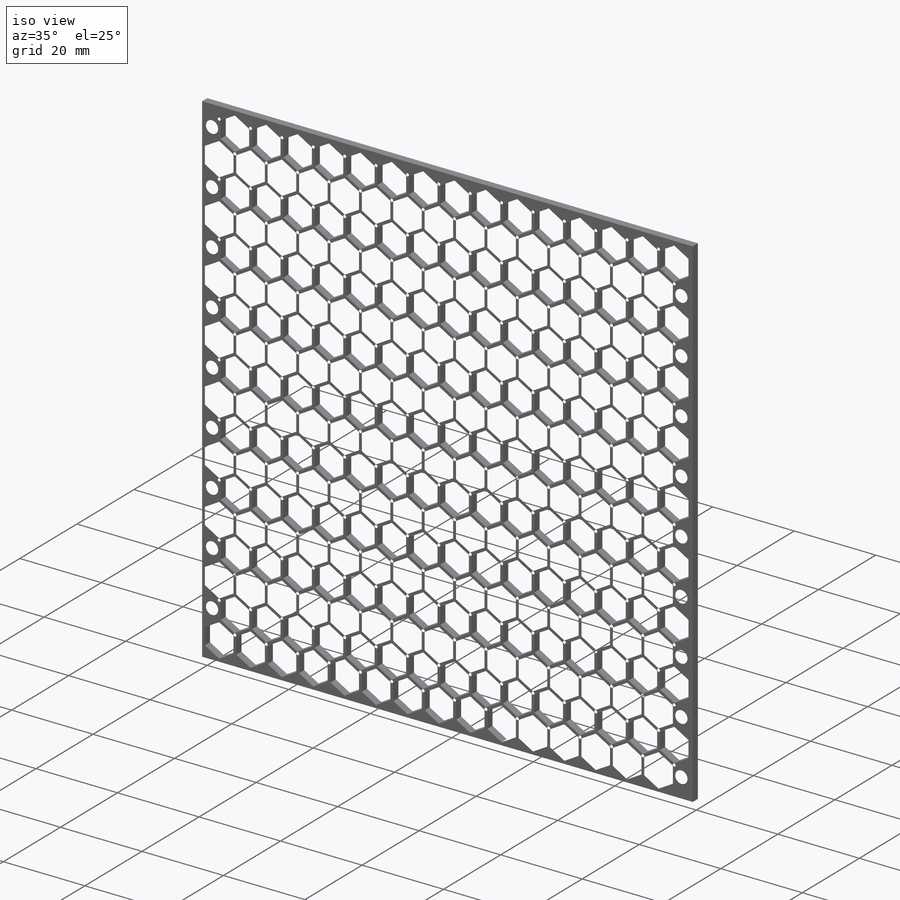
[diagram: iso view]
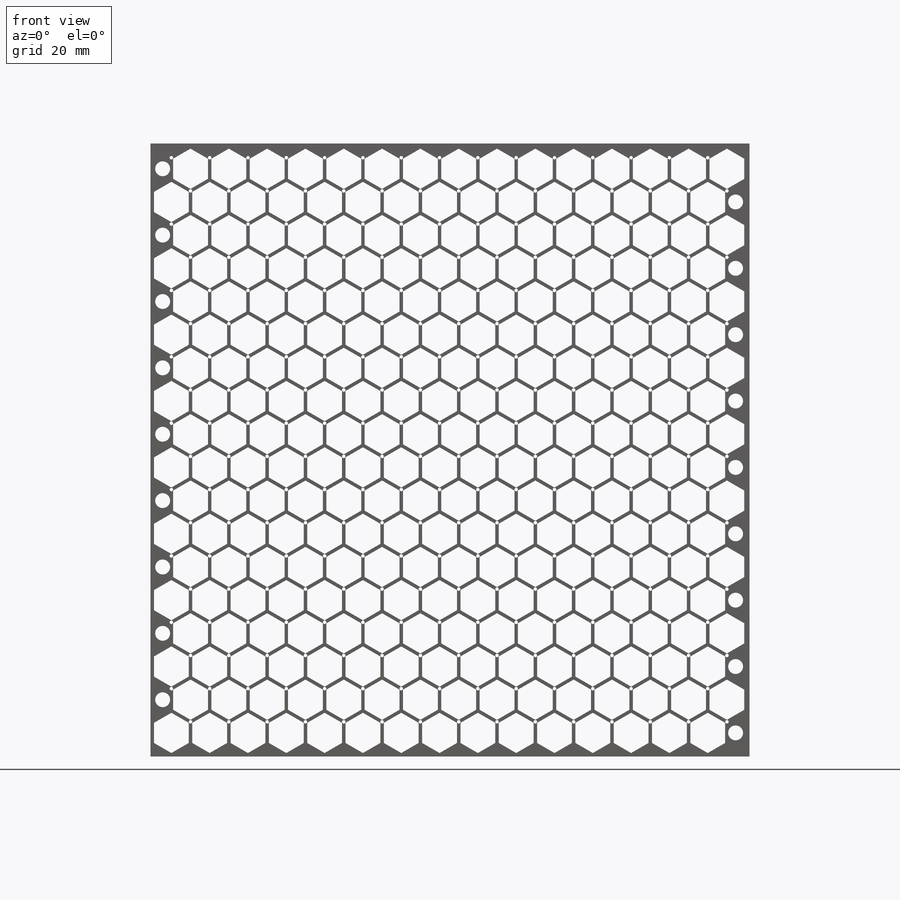
[diagram: front view]
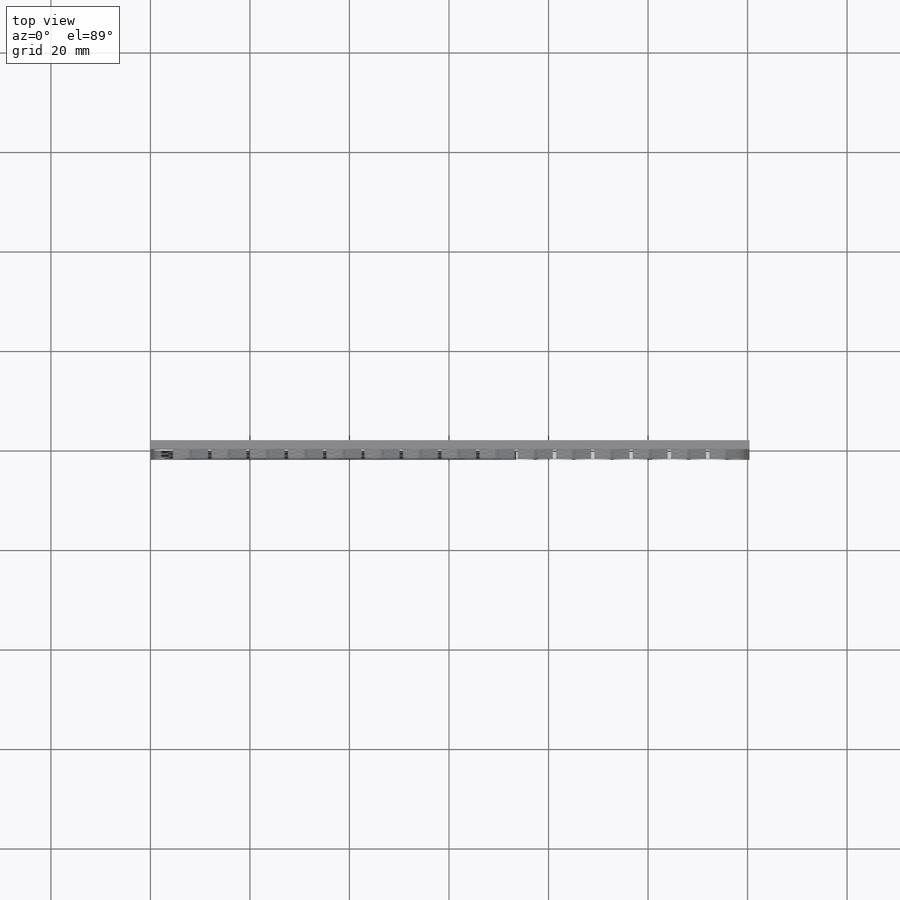
[diagram: top view]
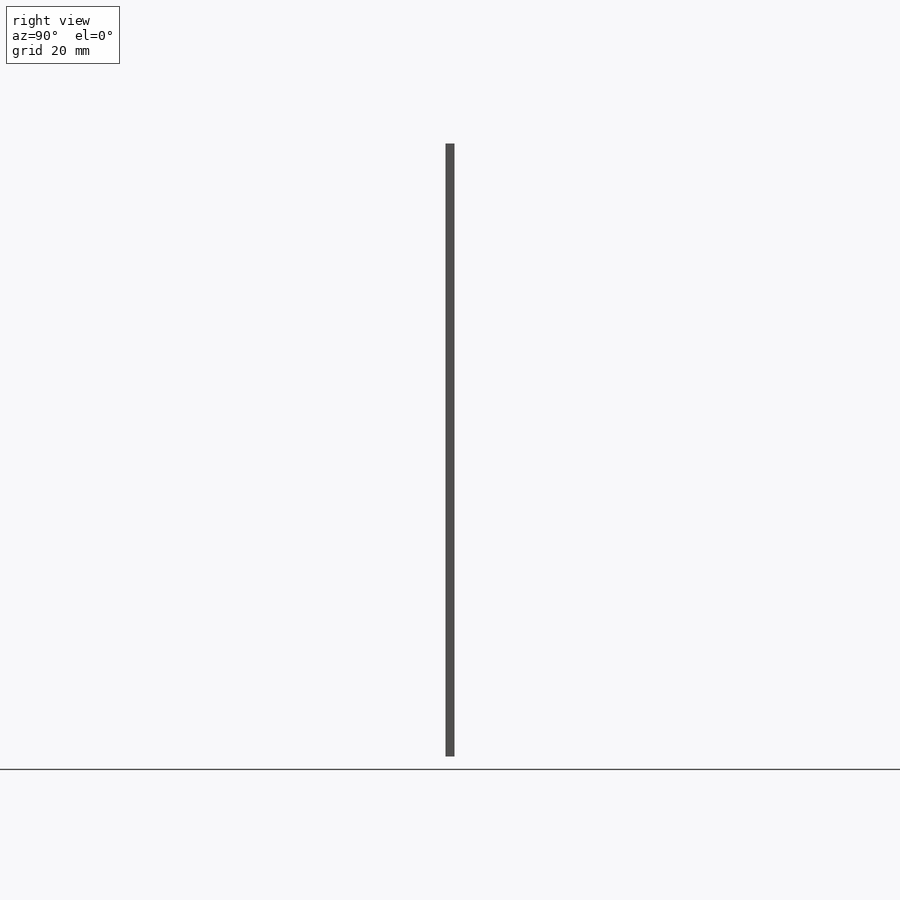
[diagram: right view]
SOLIDWORKS PART (.sldprt)
format: sldprt  version: not decoded by parser v0  size: 1,613,312 bytes
history: native  units: mm
features: sketch x5, pattern_linear x4, cut_extrude x3, extrude x2, material x1 (+15 scaffold rows collapsed)
feature tree (30):
  scaffold x15  (default folders/planes/origin — collapsed)
  material  "Material <not specified>"
  sketch  "Sketch1"  dims[D1=120.4mm D2=123.1956mm]
  extrude  "Extrude1"  Depth=1.8mm
  sketch  "Sketch2"  dims[c1.D1=4.2mm c1.D2=150.0deg c2.D2=0.7mm c2.D3=150.0deg c3.D3=3.5mm c4.D3=30.0deg c5.D3=3.5mm c6.D3=20.0deg c7.D3=3.5mm c8.D3=30.0deg c8.SIDE=4.042mm c9.D3=4.042mm c9.D4=4.042mm c9.D5=4.042mm c9.D6=4.042mm c9.DELTA=0.7mm c9.D8=30.0deg c10.D8=0.7mm c10.D9=3.5mm c10.D10=150.0deg c11.D10=3.5mm c11.D11=3.5mm c11.D12=30.0deg c12.D12=3.5mm c12.D13=3.5mm c12.D7=150.0deg c13.D7=4.042mm c13.D9=4.042mm c13.D10=30.0deg c14.D10=4.042mm c14.D11=4.042mm c14.D12=4.042mm]
  cut_extrude  "Extrude2"  [1 undecoded]
  pattern_linear  "LPattern1"  Count1=15 Count2=9 Spacing1=7.7mm Spacing2=13.3384mm
  sketch  "Sketch3"  dims[D1=~1.48314mm]
  cut_extrude  "Extrude3"  [1 undecoded]
  pattern_linear  "LPattern2"  Count1=9 Count2=1 Spacing1=13.3384mm Spacing2=12.95mm
  sketch  "Sketch4"  dims[D1=~1.539425mm]
  cut_extrude  "Extrude4"  [1 undecoded]
  pattern_linear  "LPattern3"  Count1=9 Count2=1 Spacing1=13.3384mm Spacing2=12.95mm
  sketch  "Sketch5"  dims[D1=~0.311801mm]
  extrude  "Extrude5"  Depth=0.4mm
  pattern_linear  "LPattern4"  Count1=9 Count2=15 Spacing1=13.3384mm Spacing2=7.7mm
decode coverage: 11 of 14 modeling features carry decoded parameters
note: ~ marks probable driven/reference dimensions
note: 3 parameter values undecoded
summary: no parameter record found for 3 features
note: suppression state not decoded; provenance and decode notes live in map.json
